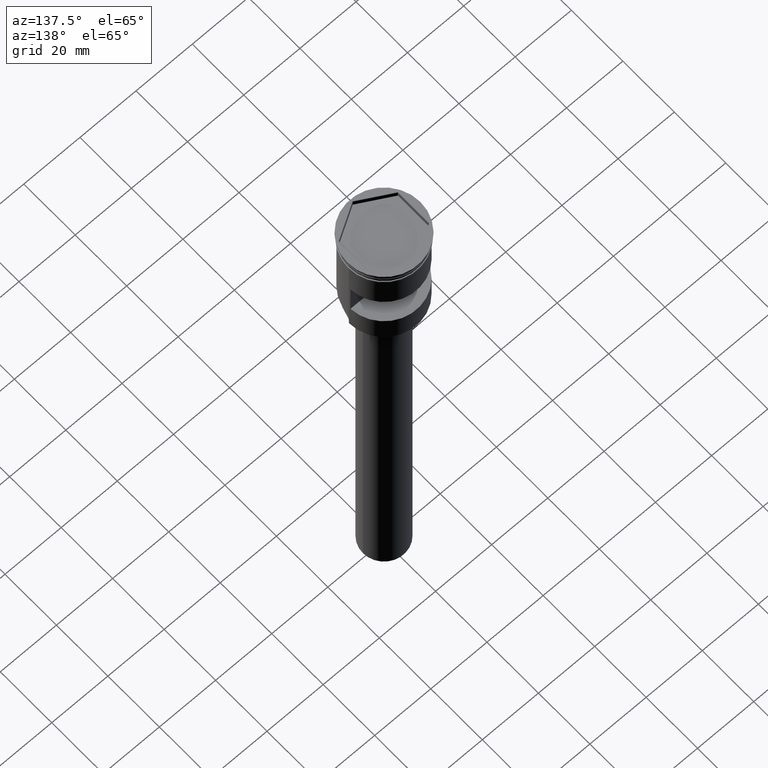
[diagram: clean part render]
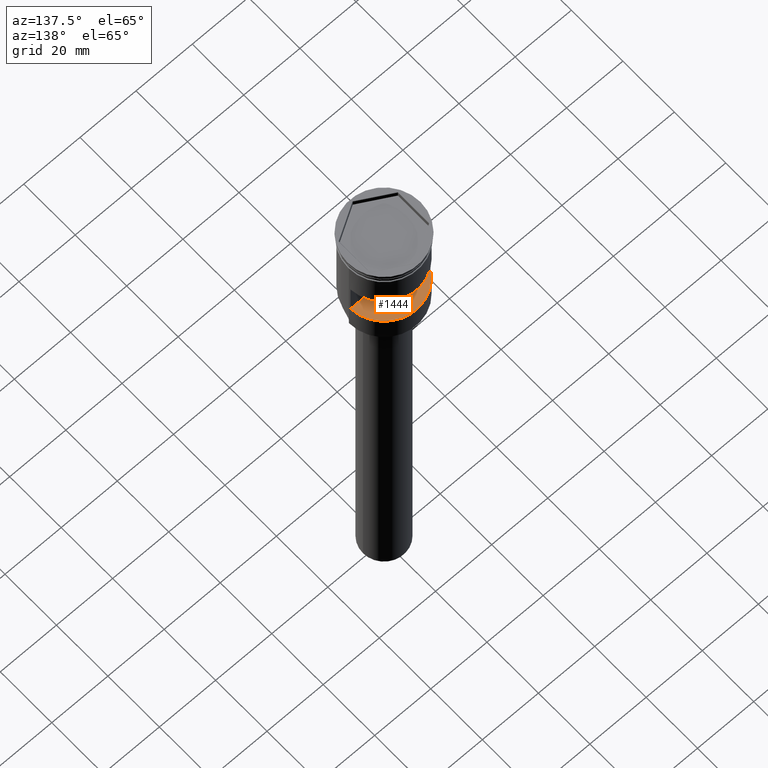
[diagram: same view with one face highlighted and labeled with its STEP entity id]
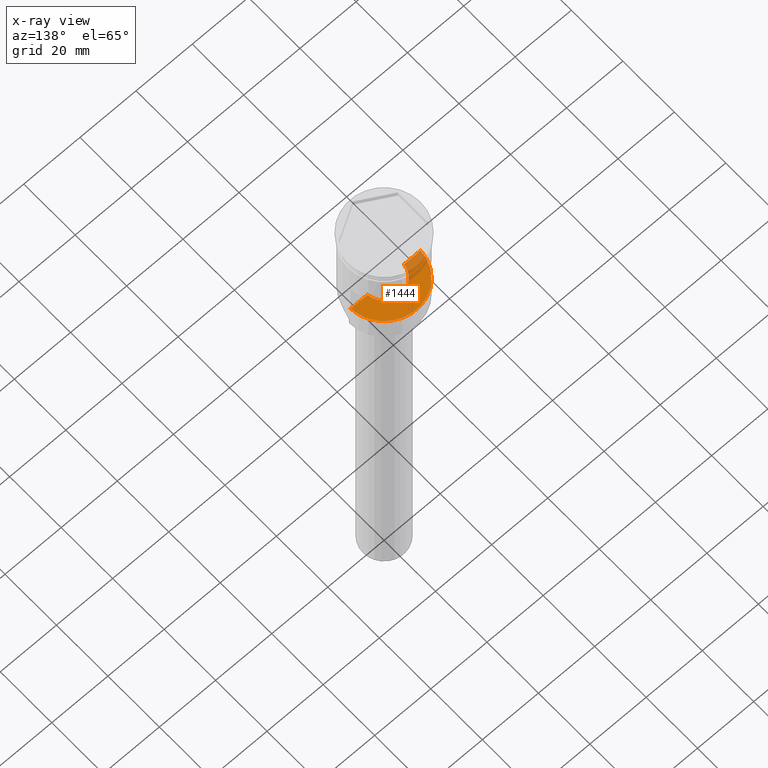
[diagram: x-ray of the same camera — body ghosted, the highlighted face saturated]
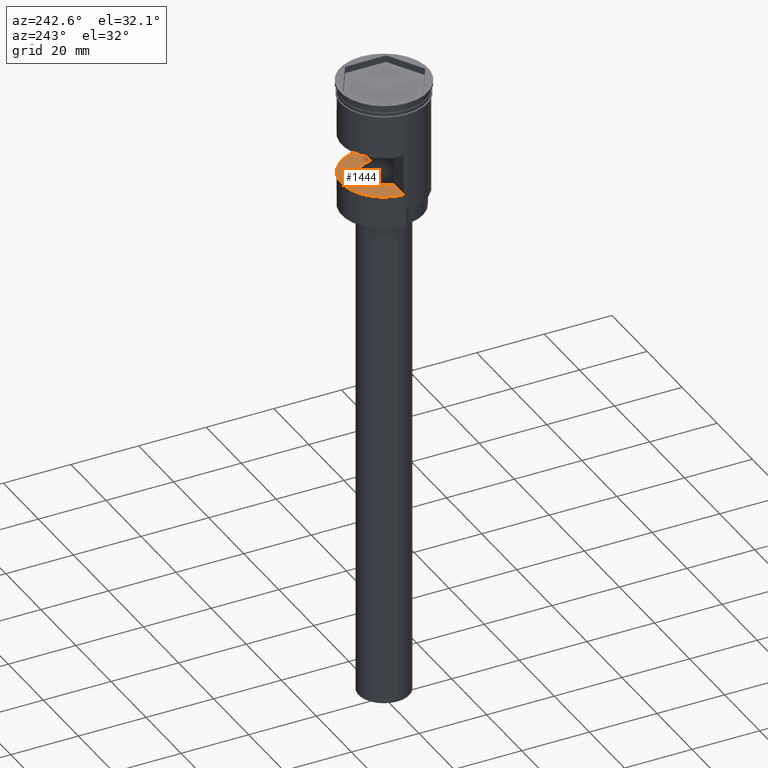
[diagram: same view with one face highlighted and labeled with its STEP entity id]
A machine part, auxiliary view. The second image highlights one B-rep face of the part: STEP entity #1444.
The next image is the same camera in x-ray: the body ghosted, the highlighted face saturated — about 16% of this face is hidden behind the body in this view.
A second angle (auxiliary view) of the same face is appended — the face is thin or edge-on in the first view.
In plain terms, the highlighted planar face has unit normal (-0, 0, -1).
Its self-contained STEP definition (entity closure, byte-faithful):
#173 = VERTEX_POINT ( 'NONE', #228 ) ;
#225 = EDGE_CURVE ( 'NONE', #173, #397, #492, .T. ) ;
#228 = CARTESIAN_POINT ( 'NONE',  ( 12.48559169603106689, 0.6000000000000003109, -28.49999999999999645 ) ) ;
#234 = AXIS2_PLACEMENT_3D ( 'NONE', #1060, #424, #1167 ) ;
#302 = VERTEX_POINT ( 'NONE', #334 ) ;
#334 = CARTESIAN_POINT ( 'NONE',  ( 6.472248450113761820, 0.6000000000000003109, -28.49999999999999645 ) ) ;
#366 = CIRCLE ( 'NONE', #790, 6.500000000000000888 ) ;
#376 = DIRECTION ( 'NONE',  ( 0.000000000000000000, 0.000000000000000000, 1.000000000000000000 ) ) ;
#384 = VECTOR ( 'NONE', #640, 1000.000000000000000 ) ;
#397 = VERTEX_POINT ( 'NONE', #662 ) ;
#424 = DIRECTION ( 'NONE',  ( -0.000000000000000000, 0.000000000000000000, -1.000000000000000000 ) ) ;
#425 = EDGE_CURVE ( 'NONE', #302, #173, #541, .T. ) ;
#492 = CIRCLE ( 'NONE', #733, 12.49999999999999645 ) ;
#541 = LINE ( 'NONE', #632, #384 ) ;
#629 = LINE ( 'NONE', #1481, #719 ) ;
#632 = CARTESIAN_POINT ( 'NONE',  ( -13.00000000000000178, 0.6000000000000003109, -28.49999999999999645 ) ) ;
#640 = DIRECTION ( 'NONE',  ( 1.000000000000000000, -0.000000000000000000, -0.000000000000000000 ) ) ;
#657 = ORIENTED_EDGE ( 'NONE', *, *, #1473, .T. ) ;
#662 = CARTESIAN_POINT ( 'NONE',  ( -12.48559169603106689, 0.6000000000000003109, -28.49999999999999645 ) ) ;
#666 = DIRECTION ( 'NONE',  ( -1.000000000000000000, 0.000000000000000000, 0.000000000000000000 ) ) ;
#699 = CARTESIAN_POINT ( 'NONE',  ( -6.472248450113762708, 0.6000000000000003109, -28.49999999999999645 ) ) ;
#719 = VECTOR ( 'NONE', #1504, 1000.000000000000000 ) ;
#723 = CARTESIAN_POINT ( 'NONE',  ( 0.000000000000000000, 0.000000000000000000, -28.49999999999999645 ) ) ;
#733 = AXIS2_PLACEMENT_3D ( 'NONE', #723, #376, #1076 ) ;
#739 = ORIENTED_EDGE ( 'NONE', *, *, #1365, .T. ) ;
#790 = AXIS2_PLACEMENT_3D ( 'NONE', #1384, #1276, #666 ) ;
#1060 = CARTESIAN_POINT ( 'NONE',  ( -13.00000000000000178, 12.49999999999999645, -28.49999999999999645 ) ) ;
#1076 = DIRECTION ( 'NONE',  ( -1.000000000000000000, 0.000000000000000000, 0.000000000000000000 ) ) ;
#1144 = PLANE ( 'NONE',  #234 ) ;
#1147 = ORIENTED_EDGE ( 'NONE', *, *, #225, .T. ) ;
#1153 = FACE_OUTER_BOUND ( 'NONE', #1347, .T. ) ;
#1160 = VERTEX_POINT ( 'NONE', #699 ) ;
#1167 = DIRECTION ( 'NONE',  ( -1.000000000000000000, 0.000000000000000000, 0.000000000000000000 ) ) ;
#1276 = DIRECTION ( 'NONE',  ( -0.000000000000000000, -0.000000000000000000, -1.000000000000000000 ) ) ;
#1347 = EDGE_LOOP ( 'NONE', ( #739, #657, #1357, #1147 ) ) ;
#1357 = ORIENTED_EDGE ( 'NONE', *, *, #425, .T. ) ;
#1365 = EDGE_CURVE ( 'NONE', #397, #1160, #629, .T. ) ;
#1384 = CARTESIAN_POINT ( 'NONE',  ( 0.000000000000000000, 0.000000000000000000, -28.49999999999999645 ) ) ;
#1444 = ADVANCED_FACE ( 'NONE', ( #1153 ), #1144, .F. ) ;
#1473 = EDGE_CURVE ( 'NONE', #1160, #302, #366, .T. ) ;
#1481 = CARTESIAN_POINT ( 'NONE',  ( -13.00000000000000178, 0.6000000000000003109, -28.49999999999999645 ) ) ;
#1504 = DIRECTION ( 'NONE',  ( 1.000000000000000000, -0.000000000000000000, -0.000000000000000000 ) ) ;